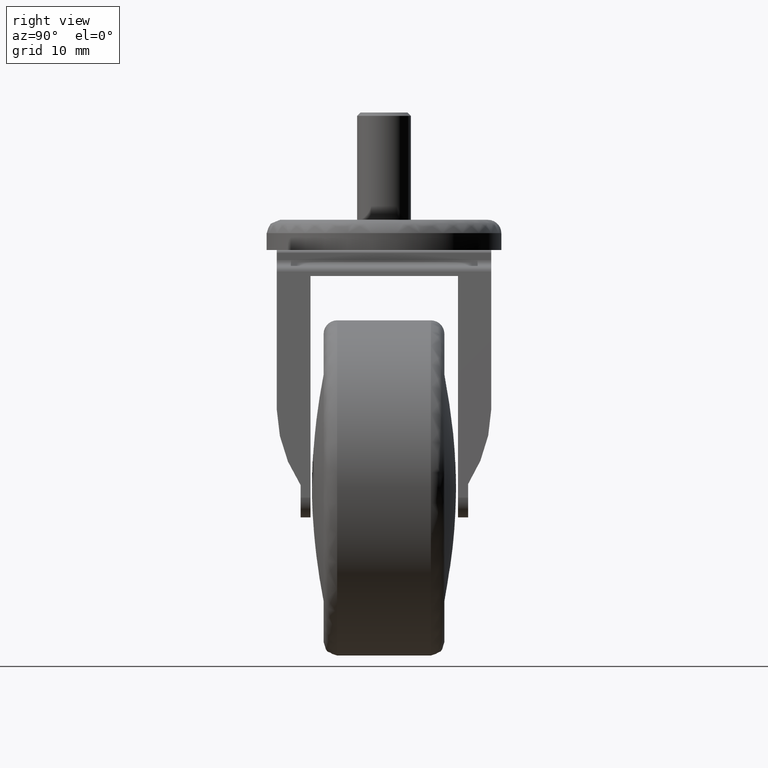
[diagram: clean part render]
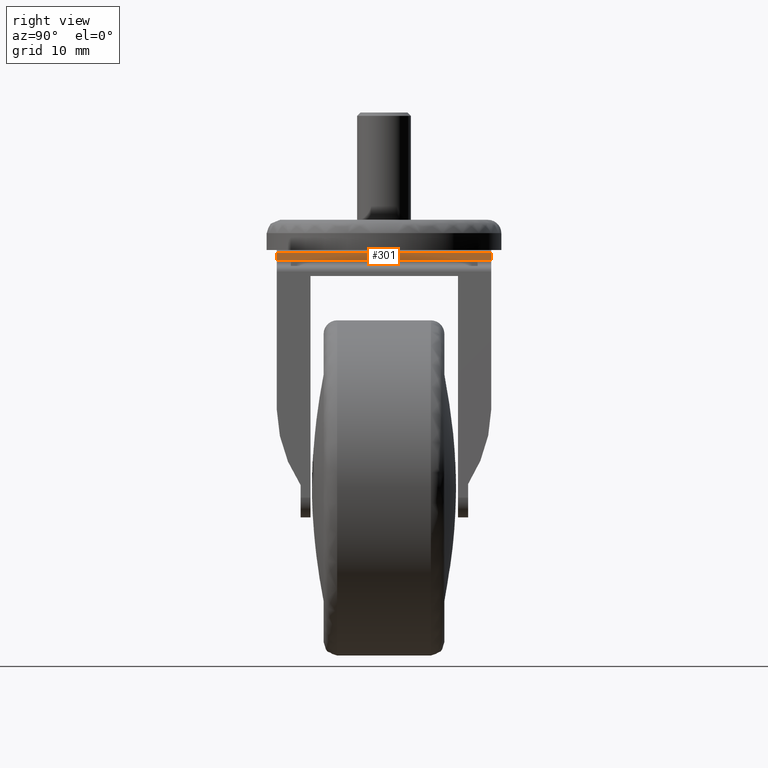
[diagram: same view with one face highlighted and labeled with its STEP entity id]
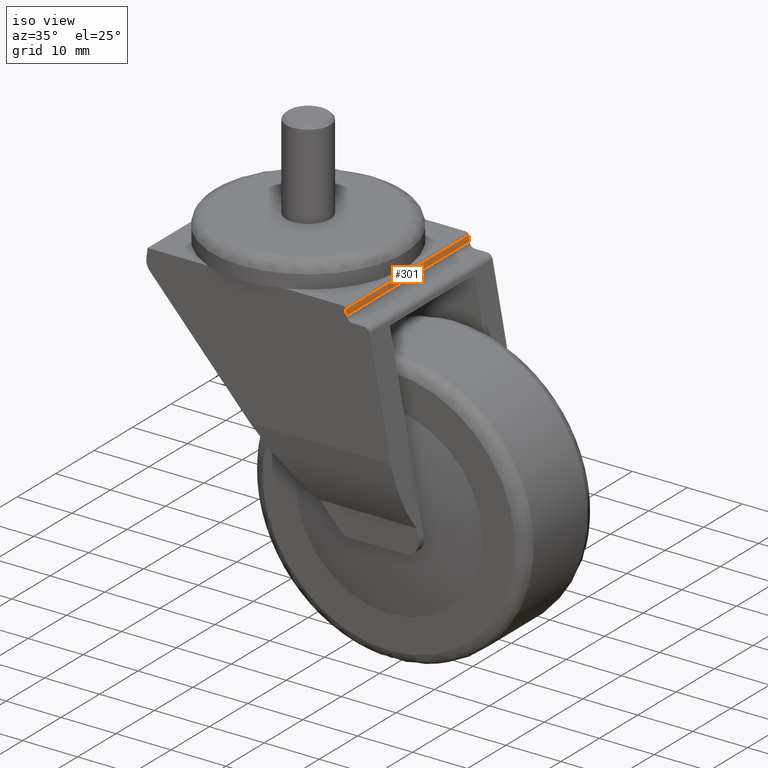
[diagram: same view with one face highlighted and labeled with its STEP entity id]
A machine part, right view. The second image highlights one B-rep face of the part: STEP entity #301.
A second angle (iso view) of the same face is appended — the face is thin or edge-on in the first view.
In plain terms, the highlighted planar face has unit normal (0.994, 0, 0.1097).
Its self-contained STEP definition (entity closure, byte-faithful):
#243=CARTESIAN_POINT('',(18.167907019151244,15.999999999936335,-6.022073385073555));
#244=VERTEX_POINT('',#243);
#252=CARTESIAN_POINT('',(18.167907019151244,-15.999999999936335,-6.022073385073553));
#253=VERTEX_POINT('',#252);
#254=CARTESIAN_POINT('',(18.167907019151244,15.999999999936335,-6.022073385073555));
#255=DIRECTION('',(0.0,-1.0,0.0));
#256=VECTOR('',#255,31.999999999872671);
#257=LINE('',#254,#256);
#258=EDGE_CURVE('',#244,#253,#257,.T.);
#271=CARTESIAN_POINT('',(18.167907019151244,15.999999999936335,-6.022073385073555));
#272=DIRECTION('',(0.993970034789757,6.714251E-018,0.109652040291323));
#273=DIRECTION('',(-0.109652040291323,6.086311E-017,0.993970034789757));
#274=AXIS2_PLACEMENT_3D('',#271,#272,#273);
#275=PLANE('',#274);
#276=CARTESIAN_POINT('',(18.049105926018456,15.999999999936335,-4.945169331482476));
#277=VERTEX_POINT('',#276);
#278=CARTESIAN_POINT('',(18.167907019151244,15.999999999936335,-6.022073385073555));
#279=DIRECTION('',(-0.109652040291323,0.0,0.993970034789757));
#280=VECTOR('',#279,1.083437141864005);
#281=LINE('',#278,#280);
#282=EDGE_CURVE('',#244,#277,#281,.T.);
#283=ORIENTED_EDGE('',*,*,#282,.T.);
#284=CARTESIAN_POINT('',(18.049105926018456,-15.999999999936335,-4.945169331482474));
#285=VERTEX_POINT('',#284);
#286=CARTESIAN_POINT('',(18.049105926018456,15.999999999936335,-4.945169331482476));
#287=DIRECTION('',(0.0,-1.0,0.0));
#288=VECTOR('',#287,31.999999999872671);
#289=LINE('',#286,#288);
#290=EDGE_CURVE('',#277,#285,#289,.T.);
#291=ORIENTED_EDGE('',*,*,#290,.T.);
#292=CARTESIAN_POINT('',(18.167907019151244,-15.999999999936335,-6.022073385073553));
#293=DIRECTION('',(-0.109652040291323,0.0,0.993970034789757));
#294=VECTOR('',#293,1.083437141864005);
#295=LINE('',#292,#294);
#296=EDGE_CURVE('',#253,#285,#295,.T.);
#297=ORIENTED_EDGE('',*,*,#296,.F.);
#298=ORIENTED_EDGE('',*,*,#258,.F.);
#299=EDGE_LOOP('',(#283,#291,#297,#298));
#300=FACE_OUTER_BOUND('',#299,.T.);
#301=ADVANCED_FACE('',(#300),#275,.T.);